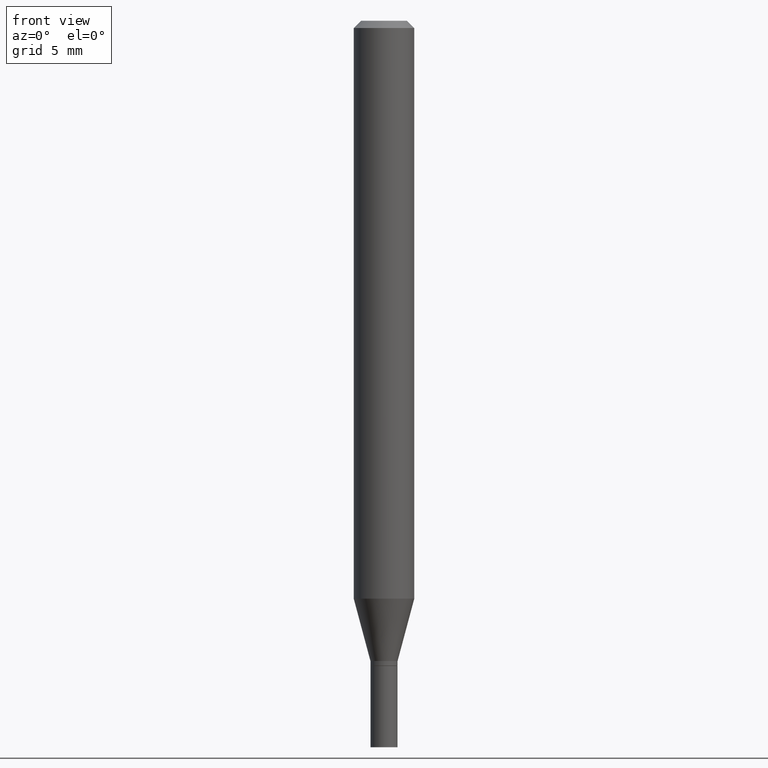
[diagram: clean part render]
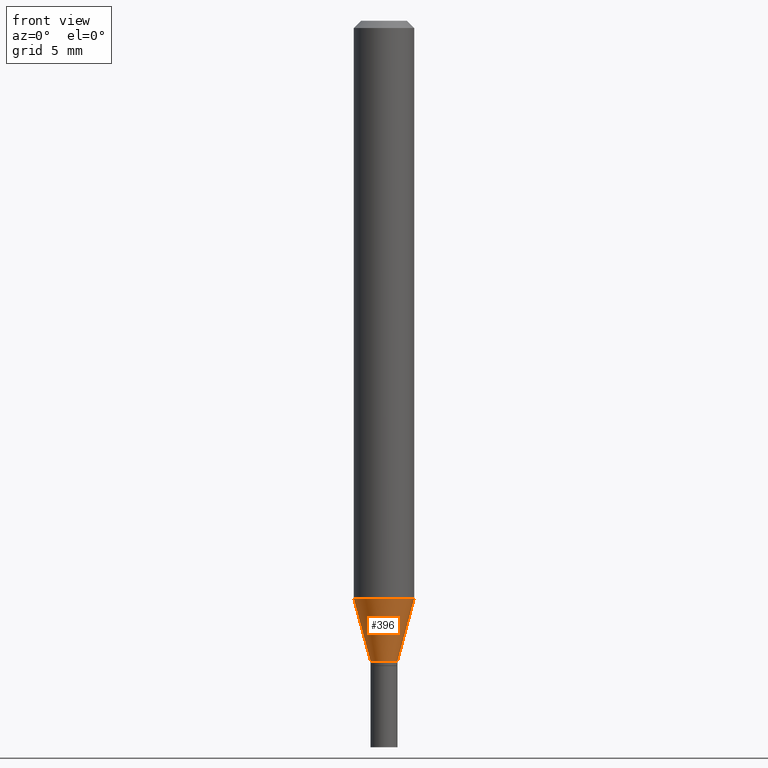
[diagram: same view with one face highlighted and labeled with its STEP entity id]
A machine part, front view. The second image highlights one B-rep face of the part: STEP entity #396.
In plain terms, the highlighted conical surface has half-angle 15 deg.
Its self-contained STEP definition (entity closure, byte-faithful):
#1 = DIRECTION ( 'NONE',  ( 1.000000000000000000, -6.982962677686283277E-15, 0.000000000000000000 ) ) ;
#2 = AXIS2_PLACEMENT_3D ( 'NONE', #412, #210, #23 ) ;
#9 = AXIS2_PLACEMENT_3D ( 'NONE', #20, #281, #87 ) ;
#20 = CARTESIAN_POINT ( 'NONE',  ( 3.232909761776751088E-29, -4.615738329950638452E-15, -1.322000000000000064 ) ) ;
#23 = DIRECTION ( 'NONE',  ( 1.000000000000000000, -6.982962677686270655E-15, 0.000000000000000000 ) ) ;
#27 = LINE ( 'NONE', #174, #387 ) ;
#56 = CARTESIAN_POINT ( 'NONE',  ( 0.06250000000000000000, -4.602625188922709150E-15, -1.193244247138873781 ) ) ;
#58 = CIRCLE ( 'NONE', #302, 0.02799999999999992079 ) ;
#59 = CIRCLE ( 'NONE', #2, 0.06250000000000000000 ) ;
#72 = ORIENTED_EDGE ( 'NONE', *, *, #390, .F. ) ;
#82 = VECTOR ( 'NONE', #133, 39.37007874015747433 ) ;
#85 = EDGE_CURVE ( 'NONE', #192, #212, #58, .T. ) ;
#87 = DIRECTION ( 'NONE',  ( 1.000000000000000000, -6.982962677686283277E-15, 0.000000000000000000 ) ) ;
#119 = CARTESIAN_POINT ( 'NONE',  ( -0.06250000000000000000, -3.722100811717253287E-15, -1.193244247138873781 ) ) ;
#133 = DIRECTION ( 'NONE',  ( 0.2588190451025213501, 1.565188264969621968E-15, 0.9659258262890682012 ) ) ;
#174 = CARTESIAN_POINT ( 'NONE',  ( -0.02799999999999992079, -4.416786363937811012E-15, -1.322000000000000064 ) ) ;
#181 = CARTESIAN_POINT ( 'NONE',  ( 3.232909761776751088E-29, -4.615738329950638452E-15, -1.322000000000000064 ) ) ;
#192 = VERTEX_POINT ( 'NONE', #406 ) ;
#207 = VERTEX_POINT ( 'NONE', #119 ) ;
#210 = DIRECTION ( 'NONE',  ( -2.445468806185136597E-29, 3.491481338843145583E-15, 1.000000000000000000 ) ) ;
#211 = ORIENTED_EDGE ( 'NONE', *, *, #444, .F. ) ;
#212 = VERTEX_POINT ( 'NONE', #270 ) ;
#257 = DIRECTION ( 'NONE',  ( -2.445468806185136597E-29, 3.491481338843145583E-15, 1.000000000000000000 ) ) ;
#270 = CARTESIAN_POINT ( 'NONE',  ( 0.02799999999999992079, -4.811261284925853951E-15, -1.322000000000000064 ) ) ;
#281 = DIRECTION ( 'NONE',  ( -2.445468806185136597E-29, 3.491481338843145583E-15, 1.000000000000000000 ) ) ;
#284 = CARTESIAN_POINT ( 'NONE',  ( 0.02799999999999992079, -4.811261284925853951E-15, -1.322000000000000064 ) ) ;
#286 = DIRECTION ( 'NONE',  ( -0.2588190451025213501, 5.211531920934551042E-15, 0.9659258262890682012 ) ) ;
#302 = AXIS2_PLACEMENT_3D ( 'NONE', #181, #257, #1 ) ;
#310 = EDGE_CURVE ( 'NONE', #212, #385, #449, .T. ) ;
#318 = ORIENTED_EDGE ( 'NONE', *, *, #85, .T. ) ;
#352 = CONICAL_SURFACE ( 'NONE', #9, 0.02799999999999992079, 0.2617993877991500740 ) ;
#354 = FACE_OUTER_BOUND ( 'NONE', #381, .T. ) ;
#381 = EDGE_LOOP ( 'NONE', ( #211, #318, #383, #72 ) ) ;
#383 = ORIENTED_EDGE ( 'NONE', *, *, #310, .T. ) ;
#385 = VERTEX_POINT ( 'NONE', #56 ) ;
#387 = VECTOR ( 'NONE', #286, 39.37007874015747433 ) ;
#390 = EDGE_CURVE ( 'NONE', #207, #385, #59, .T. ) ;
#396 = ADVANCED_FACE ( 'NONE', ( #354 ), #352, .T. ) ;
#406 = CARTESIAN_POINT ( 'NONE',  ( -0.02799999999999992079, -4.069443587827532544E-15, -1.322000000000000064 ) ) ;
#412 = CARTESIAN_POINT ( 'NONE',  ( 2.918041584537983972E-29, -4.166190021567316692E-15, -1.193244247138873781 ) ) ;
#444 = EDGE_CURVE ( 'NONE', #192, #207, #27, .T. ) ;
#449 = LINE ( 'NONE', #284, #82 ) ;